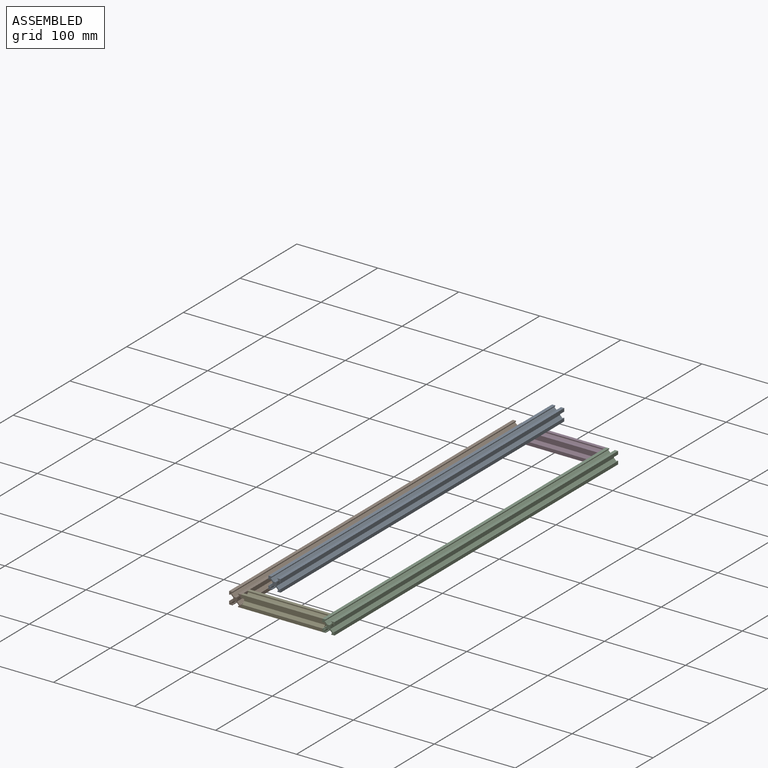
[diagram: assembled view]
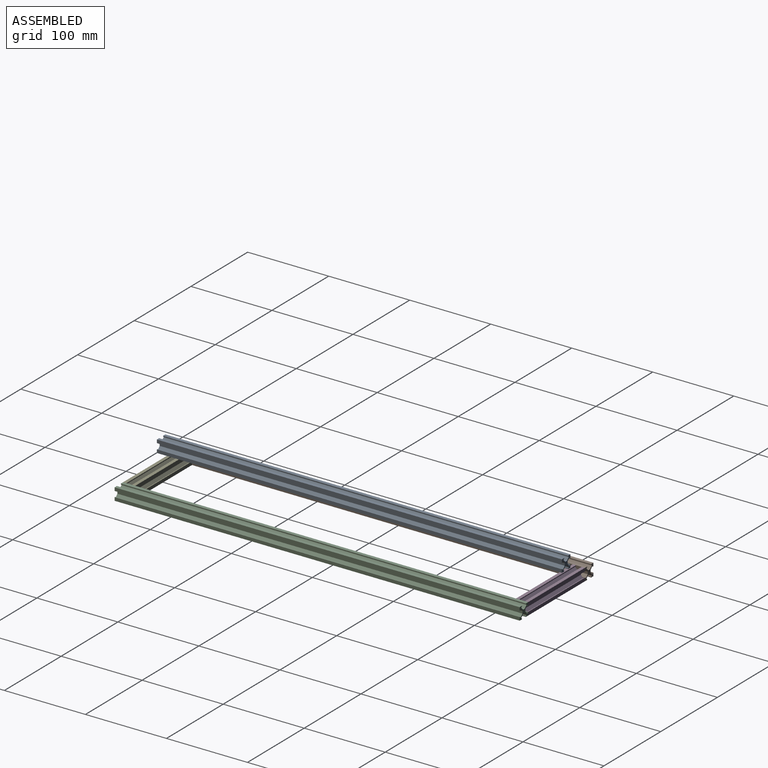
[diagram: assembled view, second angle]
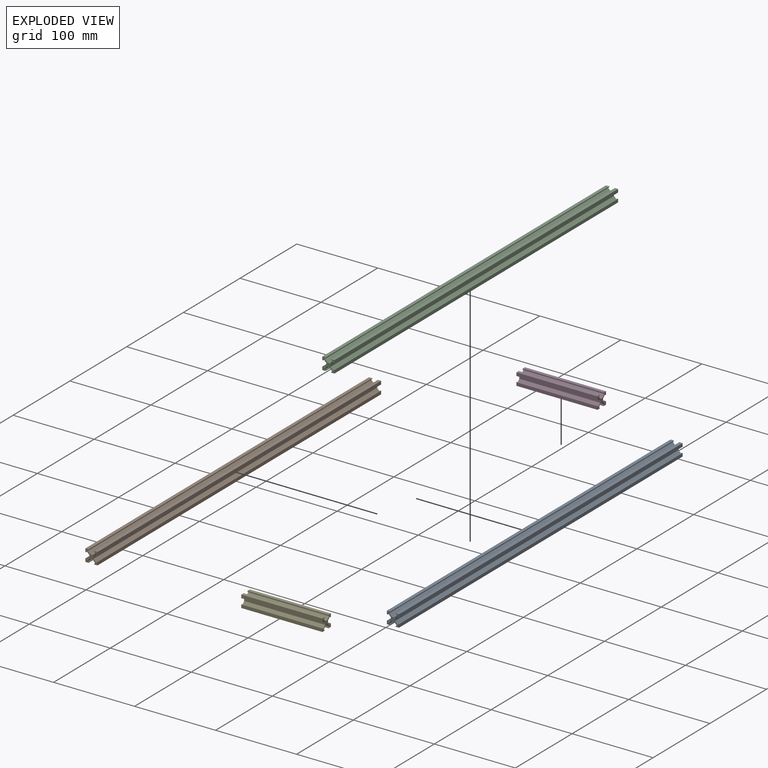
[diagram: exploded view]
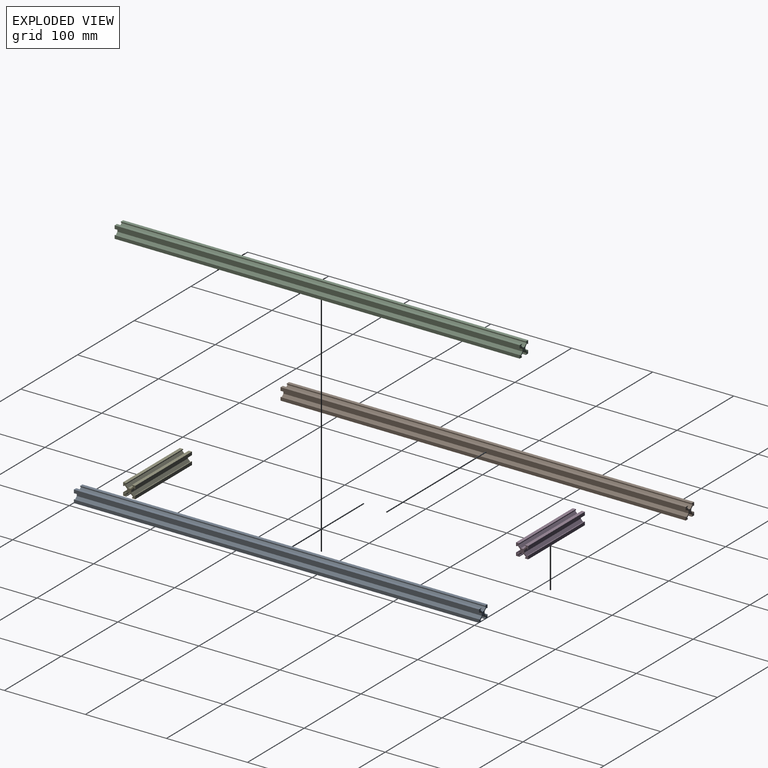
[diagram: exploded view, second angle]
ASSEMBLY  parts=5 mates=3
PART A: 46 faces, bbox 15x500x15 mm
  f0: plane 500x4mm, normal (0,0,1), area 2000mm2, adj f1,f4,f5,f10
  f1: plane 500x4mm, normal (-1,0,0), area 2000mm2, adj f0,f4,f5,f38
  f2: plane 500x4mm, normal (0,0,-1), area 2000mm2, adj f4,f5,f7,f20
  f3: plane 500x4mm, normal (1,0,0), area 2000mm2, adj f4,f5,f6,f29
  f4: plane 15x15mm, normal (0,1,0), area 89mm2, adj f0,f1,f2,f3,f6,f7,f8,f9
  f5: plane 15x15mm, normal (0,-1,0), area 89mm2, adj f0,f1,f2,f3,f6,f7,f8,f9
  f6: plane 500x4mm, normal (0,0,1), area 2000mm2, adj f3,f4,f5,f11
  f7: plane 500x4mm, normal (-1,0,0), area 2000mm2, adj f2,f4,f5,f37
  f8: plane 500x4mm, normal (0,0,-1), area 2000mm2, adj f4,f5,f9,f19
  f9: plane 500x4mm, normal (1,0,0), area 2000mm2, adj f4,f5,f8,f28
  f10: plane 500x1mm, normal (1,0,0), area 500mm2, adj f0,f4,f5,f12
  f11: plane 500x1mm, normal (-1,0,0), area 500mm2, adj f4,f5,f6,f18
  f12: plane 500x1mm, normal (0,0,-1), area 500mm2, adj f4,f5,f10,f13
  f13: plane 500x1mm, normal (1,0,0), area 500mm2, adj f4,f5,f12,f14
  f14: plane 500x3mm, normal (0.71,0,0.71), area 2121.3mm2, adj f4,f5,f13,f15
  f15: plane 500x3mm, normal (0,0,1), area 1500mm2, adj f4,f5,f14,f16
  f16: plane 500x3mm, normal (-0.71,0,0.71), area 2121.3mm2, adj f4,f5,f15,f17
  f17: plane 500x1mm, normal (-1,0,0), area 500mm2, adj f4,f5,f16,f18
  f18: plane 500x1mm, normal (0,0,-1), area 500mm2, adj f4,f5,f11,f17
  f19: plane 500x1mm, normal (-1,0,0), area 500mm2, adj f4,f5,f8,f21
  f20: plane 500x1mm, normal (1,0,0), area 500mm2, adj f2,f4,f5,f27
  f21: plane 500x1mm, normal (0,0,1), area 500mm2, adj f4,f5,f19,f22
  f22: plane 500x1mm, normal (-1,0,0), area 500mm2, adj f4,f5,f21,f23
  f23: plane 500x3mm, normal (-0.71,0,-0.71), area 2121.3mm2, adj f4,f5,f22,f24
  f24: plane 500x3mm, normal (0,0,-1), area 1500mm2, adj f4,f5,f23,f25
  f25: plane 500x3mm, normal (0.71,0,-0.71), area 2121.3mm2, adj f4,f5,f24,f26
  f26: plane 500x1mm, normal (1,0,0), area 500mm2, adj f4,f5,f25,f27
  f27: plane 500x1mm, normal (0,0,1), area 500mm2, adj f4,f5,f20,f26
  f28: plane 500x1mm, normal (0,0,1), area 500mm2, adj f4,f5,f9,f36
  f29: plane 500x1mm, normal (0,0,-1), area 500mm2, adj f3,f4,f5,f30
  f30: plane 500x1mm, normal (-1,0,0), area 500mm2, adj f4,f5,f29,f31
  f31: plane 500x1mm, normal (0,0,-1), area 500mm2, adj f4,f5,f30,f32
  f32: plane 500x3mm, normal (0.71,0,-0.71), area 2121.3mm2, adj f4,f5,f31,f33
  f33: plane 500x3mm, normal (1,0,0), area 1500mm2, adj f4,f5,f32,f34
  f34: plane 500x3mm, normal (0.71,0,0.71), area 2121.3mm2, adj f4,f5,f33,f35
  f35: plane 500x1mm, normal (0,0,1), area 500mm2, adj f4,f5,f34,f36
  f36: plane 500x1mm, normal (-1,0,0), area 500mm2, adj f4,f5,f28,f35
  f37: plane 500x1mm, normal (0,0,1), area 500mm2, adj f4,f5,f7,f39
  f38: plane 500x1mm, normal (0,0,-1), area 500mm2, adj f1,f4,f5,f45
  f39: plane 500x1mm, normal (1,0,0), area 500mm2, adj f4,f5,f37,f40
  f40: plane 500x1mm, normal (0,0,1), area 500mm2, adj f4,f5,f39,f41
  f41: plane 500x3mm, normal (-0.71,0,0.71), area 2121.3mm2, adj f4,f5,f40,f42
  f42: plane 500x3mm, normal (-1,0,0), area 1500mm2, adj f4,f5,f41,f43
  f43: plane 500x3mm, normal (-0.71,0,-0.71), area 2121.3mm2, adj f4,f5,f42,f44
  f44: plane 500x1mm, normal (0,0,-1), area 500mm2, adj f4,f5,f43,f45
  f45: plane 500x1mm, normal (1,0,0), area 500mm2, adj f4,f5,f38,f44
PART B: same geometry as A
PART C: same geometry as A
PART D: 46 faces, bbox 15x100x15 mm
  f0: plane 100x4mm, normal (0,0,1), area 400mm2, adj f1,f4,f5,f10
  f1: plane 100x4mm, normal (-1,0,0), area 400mm2, adj f0,f4,f5,f38
  f2: plane 100x4mm, normal (0,0,-1), area 400mm2, adj f4,f5,f7,f20
  f3: plane 100x4mm, normal (1,0,0), area 400mm2, adj f4,f5,f6,f29
  f4: plane 15x15mm, normal (0,1,0), area 89mm2, adj f0,f1,f2,f3,f6,f7,f8,f9
  f5: plane 15x15mm, normal (0,-1,0), area 89mm2, adj f0,f1,f2,f3,f6,f7,f8,f9
  f6: plane 100x4mm, normal (0,0,1), area 400mm2, adj f3,f4,f5,f11
  f7: plane 100x4mm, normal (-1,0,0), area 400mm2, adj f2,f4,f5,f37
  f8: plane 100x4mm, normal (0,0,-1), area 400mm2, adj f4,f5,f9,f19
  f9: plane 100x4mm, normal (1,0,0), area 400mm2, adj f4,f5,f8,f28
  f10: plane 100x1mm, normal (1,0,0), area 100mm2, adj f0,f4,f5,f12
  f11: plane 100x1mm, normal (-1,0,0), area 100mm2, adj f4,f5,f6,f18
  f12: plane 100x1mm, normal (0,0,-1), area 100mm2, adj f4,f5,f10,f13
  f13: plane 100x1mm, normal (1,0,0), area 100mm2, adj f4,f5,f12,f14
  f14: plane 100x3mm, normal (0.71,0,0.71), area 424.3mm2, adj f4,f5,f13,f15
  f15: plane 100x3mm, normal (0,0,1), area 300mm2, adj f4,f5,f14,f16
  f16: plane 100x3mm, normal (-0.71,0,0.71), area 424.3mm2, adj f4,f5,f15,f17
  f17: plane 100x1mm, normal (-1,0,0), area 100mm2, adj f4,f5,f16,f18
  f18: plane 100x1mm, normal (0,0,-1), area 100mm2, adj f4,f5,f11,f17
  f19: plane 100x1mm, normal (-1,0,0), area 100mm2, adj f4,f5,f8,f21
  f20: plane 100x1mm, normal (1,0,0), area 100mm2, adj f2,f4,f5,f27
  f21: plane 100x1mm, normal (0,0,1), area 100mm2, adj f4,f5,f19,f22
  f22: plane 100x1mm, normal (-1,0,0), area 100mm2, adj f4,f5,f21,f23
  f23: plane 100x3mm, normal (-0.71,0,-0.71), area 424.3mm2, adj f4,f5,f22,f24
  f24: plane 100x3mm, normal (0,0,-1), area 300mm2, adj f4,f5,f23,f25
  f25: plane 100x3mm, normal (0.71,0,-0.71), area 424.3mm2, adj f4,f5,f24,f26
  f26: plane 100x1mm, normal (1,0,0), area 100mm2, adj f4,f5,f25,f27
  f27: plane 100x1mm, normal (0,0,1), area 100mm2, adj f4,f5,f20,f26
  f28: plane 100x1mm, normal (0,0,1), area 100mm2, adj f4,f5,f9,f36
  f29: plane 100x1mm, normal (0,0,-1), area 100mm2, adj f3,f4,f5,f30
  f30: plane 100x1mm, normal (-1,0,0), area 100mm2, adj f4,f5,f29,f31
  f31: plane 100x1mm, normal (0,0,-1), area 100mm2, adj f4,f5,f30,f32
  f32: plane 100x3mm, normal (0.71,0,-0.71), area 424.3mm2, adj f4,f5,f31,f33
  f33: plane 100x3mm, normal (1,0,0), area 300mm2, adj f4,f5,f32,f34
  f34: plane 100x3mm, normal (0.71,0,0.71), area 424.3mm2, adj f4,f5,f33,f35
  f35: plane 100x1mm, normal (0,0,1), area 100mm2, adj f4,f5,f34,f36
  f36: plane 100x1mm, normal (-1,0,0), area 100mm2, adj f4,f5,f28,f35
  f37: plane 100x1mm, normal (0,0,1), area 100mm2, adj f4,f5,f7,f39
  f38: plane 100x1mm, normal (0,0,-1), area 100mm2, adj f1,f4,f5,f45
  f39: plane 100x1mm, normal (1,0,0), area 100mm2, adj f4,f5,f37,f40
  f40: plane 100x1mm, normal (0,0,1), area 100mm2, adj f4,f5,f39,f41
  f41: plane 100x3mm, normal (-0.71,0,0.71), area 424.3mm2, adj f4,f5,f40,f42
  f42: plane 100x3mm, normal (-1,0,0), area 300mm2, adj f4,f5,f41,f43
  f43: plane 100x3mm, normal (-0.71,0,-0.71), area 424.3mm2, adj f4,f5,f42,f44
  f44: plane 100x1mm, normal (0,0,-1), area 100mm2, adj f4,f5,f43,f45
  f45: plane 100x1mm, normal (1,0,0), area 100mm2, adj f4,f5,f38,f44
PART E: same geometry as D
PLACE A t=(1.6,-155.58,202.32)mm
PLACE B t=(-44.27,-159.31,174.37)mm
PLACE C t=(70.73,-159.31,174.37)mm
PLACE D rot(axis=(0,0,-1),90deg) t=(-36.77,333.19,174.37)mm
PLACE E rot(axis=(0,0,1),90deg) t=(63.23,-151.81,174.37)mm
MATE fastened D.f0 <-> B.f6  axis (0,0,1) through (-36.77,340.69,181.87)mm
MATE fastened E.f0 <-> B.f6  axis (0,0,1) through (-36.77,-159.31,181.87)mm
MATE fastened C.f0 <-> E.f0  axis (0,0,1) through (63.23,-159.31,181.87)mm
